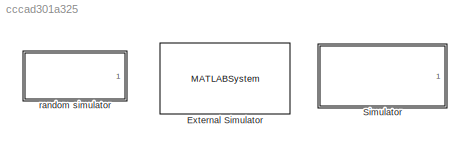
MODEL slx_cccad301a325
KIND library
CONFIG AbsTol = auto
CONFIG FixedStep = auto
CONFIG MaxStep = auto
CONFIG MinStep = auto
CONFIG RelTol = 1e-3
CONFIG SampleTimeConstraint = Unconstrained
CONFIG Solver = ode45
CONFIG SolverMode = Auto
CONFIG SolverName = ode45
CONFIG StartTime = 0.0
CONFIG StopTime = 10.0
BLOCK [MATLABSystem] External Simulator
  Condition = %20151209%
  MaskDisplay = disp('slexVarSizeMATLABSystemGetDBIDsSysObj');\nport_label('output',1,'Output');\nport_label('output',2,'unitIDs');
  MaskType = slexVarSizeMATLABSystemGetDBIDsSysObj
  N = 100
  Ports = [0, 2]
  System = slexVarSizeMATLABSystemGetDBIDsSysObj
  db_name = WaterHeaters
  db_password = unb.sql.2015
  db_username = sw_waterheaters
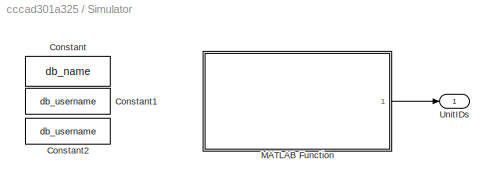
BLOCK [SubSystem] Simulator
  Ports = [0, 1]
  RequestExecContextInheritance = off
BLOCK [Constant] Simulator/Constant
  Value = db_name
BLOCK [Constant] Simulator/Constant1
  Value = db_username
BLOCK [Constant] Simulator/Constant2
  Value = db_username
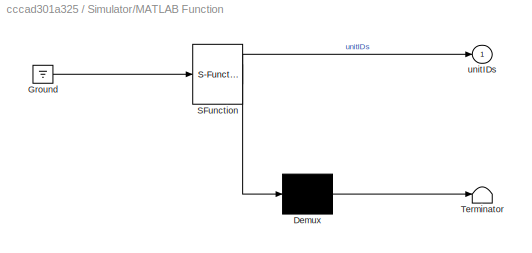
BLOCK [SubSystem] Simulator/MATLAB Function
  ErrorFcn = Stateflow.Translate.translate
  PermitHierarchicalResolution = ExplicitOnly
  Ports = [0, 1]
  RequestExecContextInheritance = off
  SFBlockType = MATLAB Function
  TreatAsAtomicUnit = on
BLOCK [Demux] Simulator/MATLAB Function/ Demux 
  Outputs = 1
  Ports = [1, 1]
BLOCK [Ground] Simulator/MATLAB Function/ Ground 
BLOCK [S-Function] Simulator/MATLAB Function/ SFunction 
  FunctionName = sf_sfun
  PortCounts = [1 2]
  Ports = [1, 2]
  Tag = Stateflow S-Function libSimulators 1
BLOCK [Terminator] Simulator/MATLAB Function/ Terminator 
BLOCK [Outport] Simulator/MATLAB Function/unitIDs
  IconDisplay = Port number
BLOCK [Outport] Simulator/UnitIDs
  IconDisplay = Port number
  OutDataTypeStr = double
  SignalType = real
  VarSizeSig = No
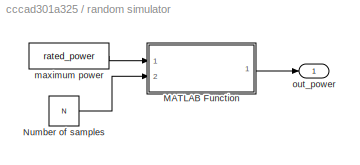
BLOCK [SubSystem] random simulator
  Ports = [0, 1]
  RequestExecContextInheritance = off
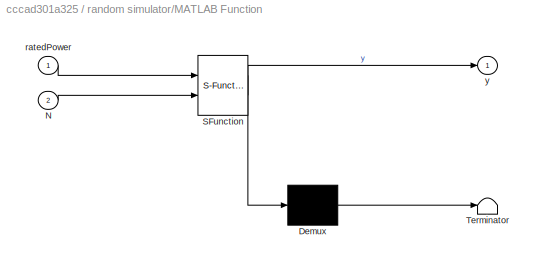
BLOCK [SubSystem] random simulator/MATLAB Function
  ErrorFcn = Stateflow.Translate.translate
  PermitHierarchicalResolution = ExplicitOnly
  Ports = [2, 1]
  RequestExecContextInheritance = off
  SFBlockType = MATLAB Function
  TreatAsAtomicUnit = on
BLOCK [Demux] random simulator/MATLAB Function/ Demux 
  Outputs = 1
  Ports = [1, 1]
BLOCK [S-Function] random simulator/MATLAB Function/ SFunction 
  FunctionName = sf_sfun
  PortCounts = [2 2]
  Ports = [2, 2]
  Tag = Stateflow S-Function libSimulators 2
BLOCK [Terminator] random simulator/MATLAB Function/ Terminator 
BLOCK [Inport] random simulator/MATLAB Function/N
  IconDisplay = Port number
  Port = 2
BLOCK [Inport] random simulator/MATLAB Function/ratedPower
  IconDisplay = Port number
BLOCK [Outport] random simulator/MATLAB Function/y
  IconDisplay = Port number
BLOCK [Constant] random simulator/Number of samples
  Value = N
BLOCK [Constant] random simulator/maximum power
  Value = rated_power
BLOCK [Outport] random simulator/out_power
  IconDisplay = Port number
LINE Simulator/MATLAB Function:1 -> Simulator/UnitIDs:1
LINE random simulator/MATLAB Function:1 -> random simulator/out_power:1
LINE random simulator/Number of samples:1 -> random simulator/MATLAB Function:2
LINE random simulator/maximum power:1 -> random simulator/MATLAB Function:1
CHART Simulator/MATLAB Function states=1 transitions=1
  STATE_LABEL 'eML_blk_kernel()'
  STATE_LABEL "SCRIPT:\nfunction unitIDs   = db_get_unitids\n%#codegen\ncoder.extrinsic('gcb');\ncoder.extrinsic('get_param');\ncoder.extrinsic('getUnitIds');\n\ndb_name = get_param(gcb, 'db_name');\ndb_username = get_param(gcb, 'db_username');\ndb_password = get_param(gcb, 'db_password');\nunitIDs  = getUnitIds (db_name, db_username, db_password);\nend\n\nfunction unitIDs   = getUnitIds (db_name,db_username, db_password);\nl...<+737ch>"
CHART random simulator/MATLAB Function states=1 transitions=1
  STATE_LABEL 'eML_blk_kernel()'
  STATE_LABEL 'SCRIPT:\nfunction y = random_power(ratedPower, N)\n%#codegen\n\ny = randi(ratedPower,[1,N]);'
